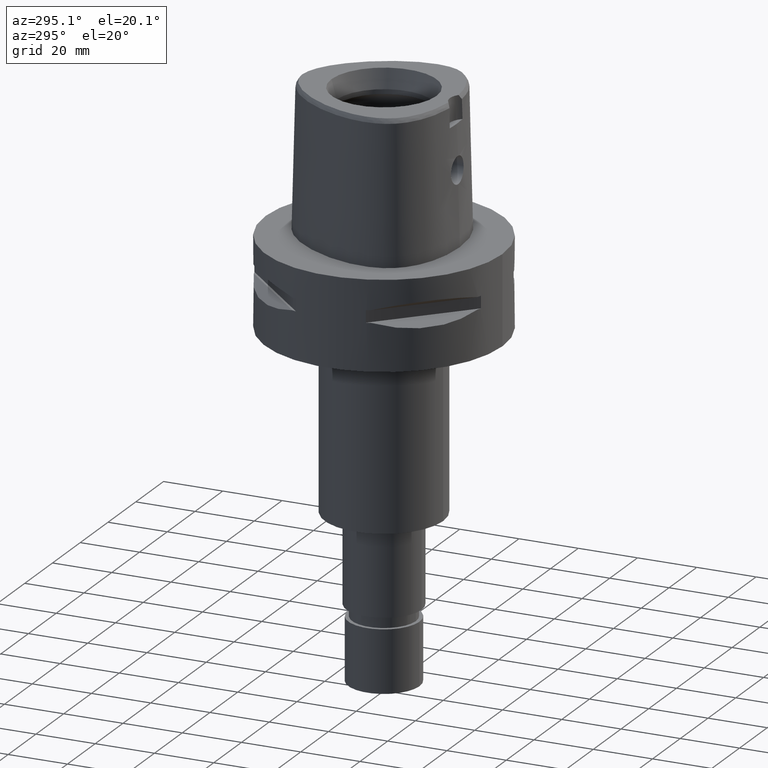
[diagram: clean part render]
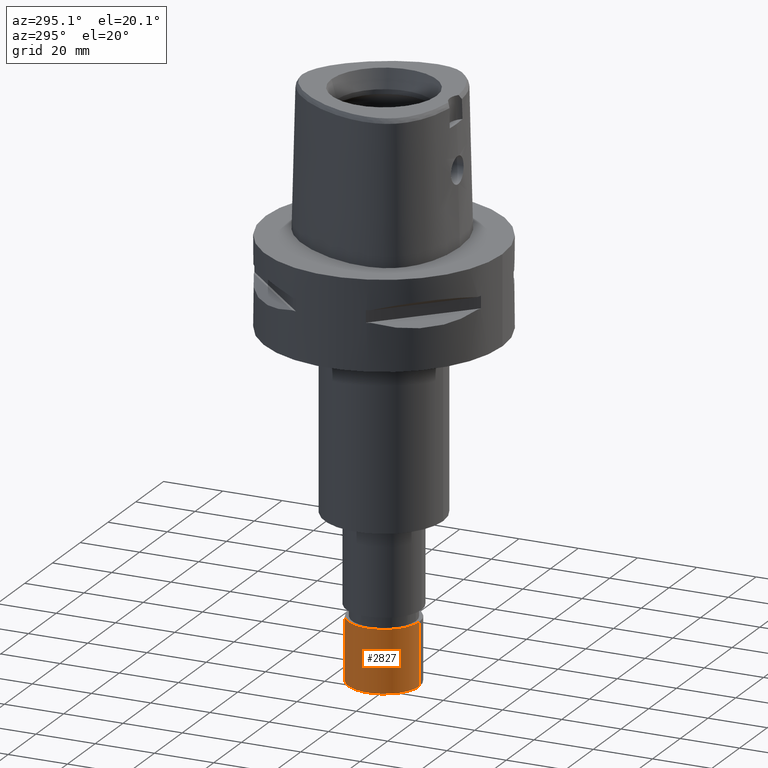
[diagram: same view with one face highlighted and labeled with its STEP entity id]
A machine part, auxiliary view. The second image highlights one B-rep face of the part: STEP entity #2827.
In plain terms, the highlighted cylindrical surface (partial cylindrical patch) has radius 12 mm, axis along (0, 0, -1).
Its self-contained STEP definition (entity closure, byte-faithful):
#731=CARTESIAN_POINT('',(0.E0,1.313433692086E-14,-1.24E2));
#732=DIRECTION('',(0.E0,0.E0,-1.E0));
#733=DIRECTION('',(0.E0,-1.E0,0.E0));
#734=AXIS2_PLACEMENT_3D('',#731,#732,#733);
#755=DIRECTION('',(0.E0,0.E0,-1.E0));
#756=VECTOR('',#755,2.1E1);
#757=CARTESIAN_POINT('',(0.E0,1.2E1,-1.24E2));
#758=LINE('',#757,#756);
#762=DIRECTION('',(0.E0,0.E0,-1.E0));
#763=VECTOR('',#762,2.1E1);
#764=CARTESIAN_POINT('',(0.E0,-1.2E1,-1.24E2));
#765=LINE('',#764,#763);
#769=CARTESIAN_POINT('',(0.E0,1.313433692086E-14,-1.45E2));
#770=DIRECTION('',(0.E0,0.E0,1.E0));
#771=DIRECTION('',(0.E0,1.E0,0.E0));
#772=AXIS2_PLACEMENT_3D('',#769,#770,#771);
#1694=CARTESIAN_POINT('',(0.E0,1.2E1,-1.24E2));
#1695=CARTESIAN_POINT('',(0.E0,-1.2E1,-1.24E2));
#1696=VERTEX_POINT('',#1694);
#1697=VERTEX_POINT('',#1695);
#1698=CARTESIAN_POINT('',(0.E0,1.2E1,-1.45E2));
#1699=VERTEX_POINT('',#1698);
#1700=CARTESIAN_POINT('',(0.E0,-1.2E1,-1.45E2));
#1701=VERTEX_POINT('',#1700);
#2815=CARTESIAN_POINT('',(0.E0,1.313433692086E-14,7.25E0));
#2816=DIRECTION('',(0.E0,0.E0,-1.E0));
#2817=DIRECTION('',(0.E0,-1.E0,0.E0));
#2818=AXIS2_PLACEMENT_3D('',#2815,#2816,#2817);
#2819=CYLINDRICAL_SURFACE('',#2818,1.2E1);
#2820=ORIENTED_EDGE('',*,*,#2805,.F.);
#2821=ORIENTED_EDGE('',*,*,#2791,.F.);
#2822=ORIENTED_EDGE('',*,*,#2809,.T.);
#2824=ORIENTED_EDGE('',*,*,#2823,.F.);
#2825=EDGE_LOOP('',(#2820,#2821,#2822,#2824));
#2826=FACE_OUTER_BOUND('',#2825,.F.);
#735=CIRCLE('',#734,1.2E1);
#773=CIRCLE('',#772,1.2E1);
#2791=EDGE_CURVE('',#1697,#1696,#735,.T.);
#2805=EDGE_CURVE('',#1696,#1699,#758,.T.);
#2809=EDGE_CURVE('',#1697,#1701,#765,.T.);
#2823=EDGE_CURVE('',#1699,#1701,#773,.T.);
#2827=ADVANCED_FACE('',(#2826),#2819,.T.);